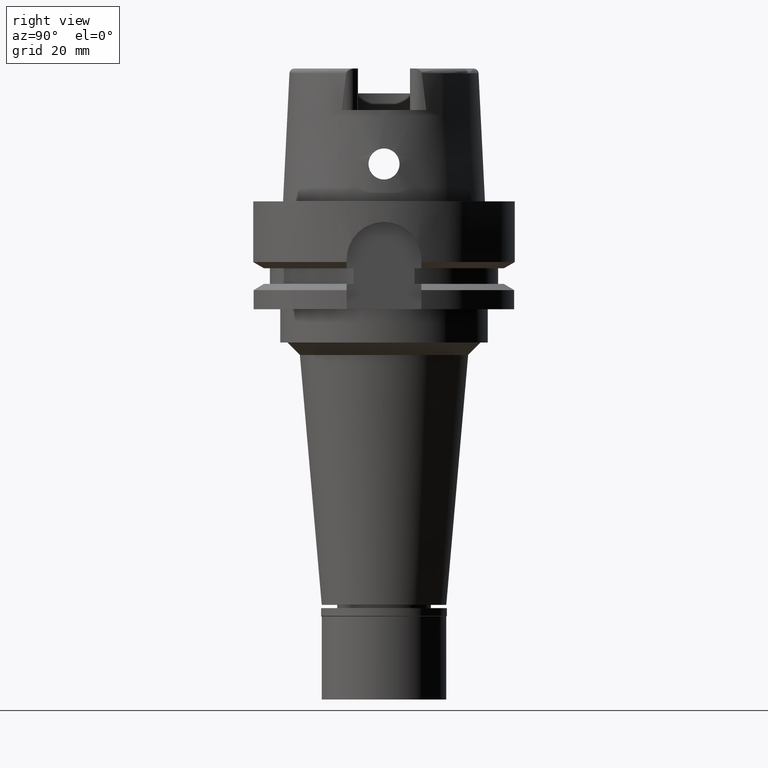
[diagram: clean part render]
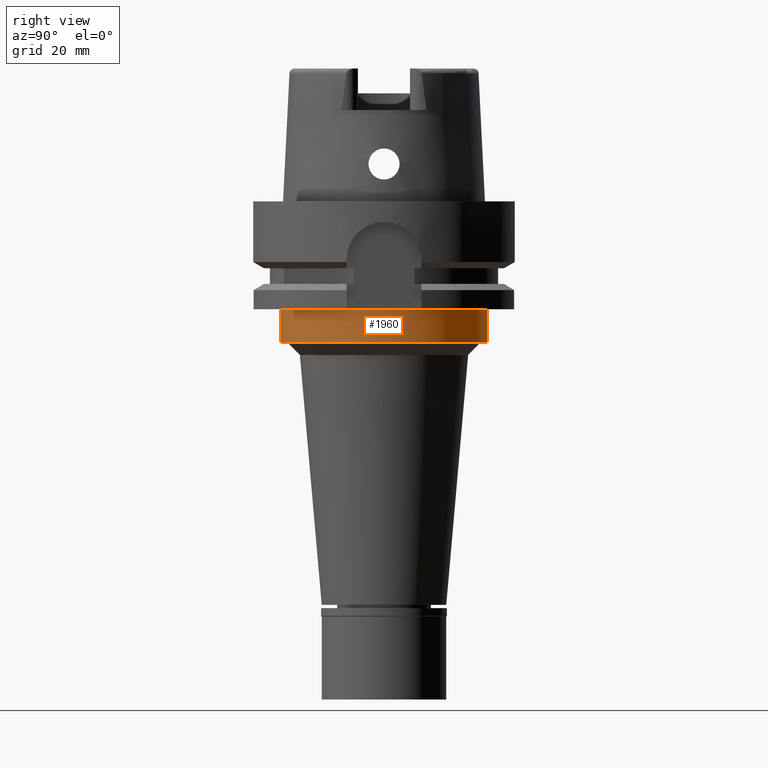
[diagram: same view with one face highlighted and labeled with its STEP entity id]
A machine part, right view. The second image highlights one B-rep face of the part: STEP entity #1960.
In plain terms, the highlighted cylindrical surface (partial cylindrical patch) has radius 25 mm, axis along (0, 0, 1).
Its self-contained STEP definition (entity closure, byte-faithful):
#249 = CARTESIAN_POINT ( 'NONE',  ( 0.0000000000000000000, 25.00000000000000000, -26.00000000000000000 ) ) ;
#351 = EDGE_CURVE ( 'NONE', #434, #1008, #435, .T. ) ;
#391 = CARTESIAN_POINT ( 'NONE',  ( 0.0000000000000000000, 25.00000000000000000, -26.00000000000000000 ) ) ;
#401 = DIRECTION ( 'NONE',  ( 0.0000000000000000000, 0.0000000000000000000, 1.000000000000000000 ) ) ;
#434 = VERTEX_POINT ( 'NONE', #391 ) ;
#435 = CIRCLE ( 'NONE', #3171, 25.00000000000000000 ) ;
#495 = CIRCLE ( 'NONE', #3148, 25.00000000000000000 ) ;
#563 = DIRECTION ( 'NONE',  ( 0.0000000000000000000, 0.0000000000000000000, 1.000000000000000000 ) ) ;
#637 = ORIENTED_EDGE ( 'NONE', *, *, #351, .T. ) ;
#666 = CARTESIAN_POINT ( 'NONE',  ( 0.0000000000000000000, 25.00000000000000000, -34.00000000000000000 ) ) ;
#709 = LINE ( 'NONE', #249, #2717 ) ;
#1003 = VERTEX_POINT ( 'NONE', #666 ) ;
#1008 = VERTEX_POINT ( 'NONE', #2357 ) ;
#1168 = AXIS2_PLACEMENT_3D ( 'NONE', #3972, #563, #3102 ) ;
#1190 = DIRECTION ( 'NONE',  ( 0.0000000000000000000, -1.000000000000000000, 0.0000000000000000000 ) ) ;
#1236 = DIRECTION ( 'NONE',  ( 0.0000000000000000000, 0.0000000000000000000, -1.000000000000000000 ) ) ;
#1680 = VECTOR ( 'NONE', #1236, 1000.000000000000000 ) ;
#1688 = VERTEX_POINT ( 'NONE', #4228 ) ;
#1960 = ADVANCED_FACE ( 'NONE', ( #4728 ), #5094, .T. ) ;
#2052 = LINE ( 'NONE', #3321, #1680 ) ;
#2098 = DIRECTION ( 'NONE',  ( 0.0000000000000000000, 1.000000000000000000, 0.0000000000000000000 ) ) ;
#2357 = CARTESIAN_POINT ( 'NONE',  ( 0.0000000000000000000, -25.00000000000000000, -26.00000000000000000 ) ) ;
#2717 = VECTOR ( 'NONE', #3973, 1000.000000000000000 ) ;
#2898 = ORIENTED_EDGE ( 'NONE', *, *, #3898, .F. ) ;
#3102 = DIRECTION ( 'NONE',  ( 0.0000000000000000000, 1.000000000000000000, 0.0000000000000000000 ) ) ;
#3148 = AXIS2_PLACEMENT_3D ( 'NONE', #4066, #401, #1190 ) ;
#3157 = CARTESIAN_POINT ( 'NONE',  ( 0.0000000000000000000, 0.0000000000000000000, -26.00000000000000000 ) ) ;
#3171 = AXIS2_PLACEMENT_3D ( 'NONE', #3157, #4842, #2098 ) ;
#3306 = ORIENTED_EDGE ( 'NONE', *, *, #4832, .T. ) ;
#3321 = CARTESIAN_POINT ( 'NONE',  ( 0.0000000000000000000, -25.00000000000000000, -26.00000000000000000 ) ) ;
#3898 = EDGE_CURVE ( 'NONE', #434, #1003, #709, .T. ) ;
#3972 = CARTESIAN_POINT ( 'NONE',  ( 0.0000000000000000000, 0.0000000000000000000, 0.0000000000000000000 ) ) ;
#3973 = DIRECTION ( 'NONE',  ( 0.0000000000000000000, 0.0000000000000000000, -1.000000000000000000 ) ) ;
#4029 = ORIENTED_EDGE ( 'NONE', *, *, #4144, .T. ) ;
#4066 = CARTESIAN_POINT ( 'NONE',  ( 0.0000000000000000000, 0.0000000000000000000, -34.00000000000000000 ) ) ;
#4144 = EDGE_CURVE ( 'NONE', #1008, #1688, #2052, .T. ) ;
#4228 = CARTESIAN_POINT ( 'NONE',  ( 0.0000000000000000000, -25.00000000000000000, -34.00000000000000000 ) ) ;
#4728 = FACE_OUTER_BOUND ( 'NONE', #5275, .T. ) ;
#4832 = EDGE_CURVE ( 'NONE', #1688, #1003, #495, .T. ) ;
#4842 = DIRECTION ( 'NONE',  ( 0.0000000000000000000, 0.0000000000000000000, -1.000000000000000000 ) ) ;
#5094 = CYLINDRICAL_SURFACE ( 'NONE', #1168, 25.00000000000000000 ) ;
#5275 = EDGE_LOOP ( 'NONE', ( #637, #4029, #3306, #2898 ) ) ;